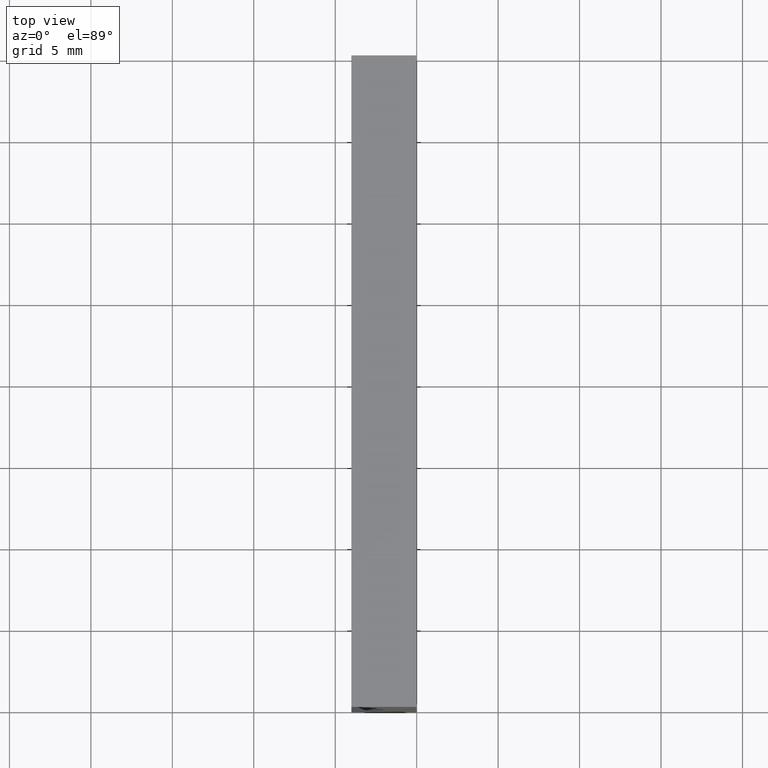
[diagram: clean part render]
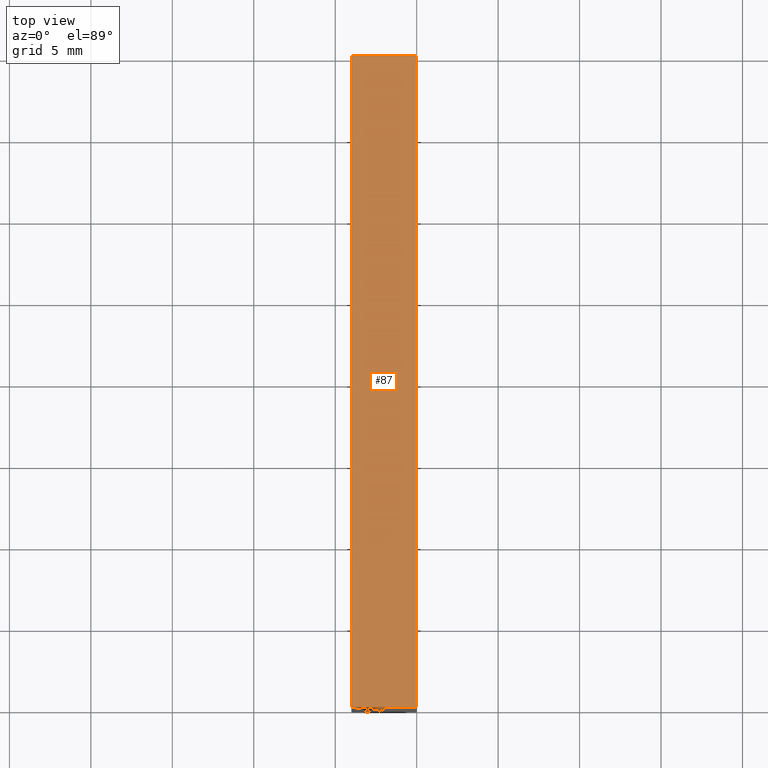
[diagram: same view with one face highlighted and labeled with its STEP entity id]
A machine part, top view. The second image highlights one B-rep face of the part: STEP entity #87.
In plain terms, the highlighted planar face has unit normal (0, 0, -1).
Its self-contained STEP definition (entity closure, byte-faithful):
#6 = LINE ( 'NONE', #25, #141 ) ;
#12 = EDGE_CURVE ( 'NONE', #93, #101, #32, .T. ) ;
#23 = DIRECTION ( 'NONE',  ( 8.646420205378973500E-016, 0.0000000000000000000, -1.000000000000000000 ) ) ;
#25 = CARTESIAN_POINT ( 'NONE',  ( -4.012581935117213000, 40.00000000000000000, 19.99999999999999600 ) ) ;
#32 = LINE ( 'NONE', #202, #139 ) ;
#42 = CARTESIAN_POINT ( 'NONE',  ( 1.224646799147353300E-015, 40.00000000000000000, 20.00000000000000000 ) ) ;
#45 = ORIENTED_EDGE ( 'NONE', *, *, #12, .F. ) ;
#63 = AXIS2_PLACEMENT_3D ( 'NONE', #143, #23, #98 ) ;
#66 = ORIENTED_EDGE ( 'NONE', *, *, #78, .T. ) ;
#72 = ORIENTED_EDGE ( 'NONE', *, *, #201, .T. ) ;
#75 = CARTESIAN_POINT ( 'NONE',  ( -4.012581935117213000, 0.0000000000000000000, 19.99999999999999600 ) ) ;
#78 = EDGE_CURVE ( 'NONE', #190, #200, #186, .T. ) ;
#87 = ADVANCED_FACE ( 'NONE', ( #102 ), #182, .F. ) ;
#91 = DIRECTION ( 'NONE',  ( 1.000000000000000000, -0.0000000000000000000, 8.646420205378973500E-016 ) ) ;
#93 = VERTEX_POINT ( 'NONE', #108 ) ;
#98 = DIRECTION ( 'NONE',  ( -1.000000000000000000, 0.0000000000000000000, -8.646420205378973500E-016 ) ) ;
#101 = VERTEX_POINT ( 'NONE', #42 ) ;
#102 = FACE_OUTER_BOUND ( 'NONE', #178, .T. ) ;
#107 = VECTOR ( 'NONE', #160, 1000.000000000000000 ) ;
#108 = CARTESIAN_POINT ( 'NONE',  ( -4.012581935117213000, 40.00000000000000000, 19.99999999999999600 ) ) ;
#112 = DIRECTION ( 'NONE',  ( -0.0000000000000000000, -1.000000000000000000, -0.0000000000000000000 ) ) ;
#121 = CARTESIAN_POINT ( 'NONE',  ( 1.224646799147353300E-015, 40.00000000000000000, 20.00000000000000000 ) ) ;
#122 = ORIENTED_EDGE ( 'NONE', *, *, #176, .F. ) ;
#123 = DIRECTION ( 'NONE',  ( 1.000000000000000000, -0.0000000000000000000, 8.646420205378973500E-016 ) ) ;
#133 = VECTOR ( 'NONE', #91, 1000.000000000000000 ) ;
#136 = CARTESIAN_POINT ( 'NONE',  ( 1.224646799147353300E-015, 0.0000000000000000000, 20.00000000000000000 ) ) ;
#139 = VECTOR ( 'NONE', #123, 1000.000000000000000 ) ;
#141 = VECTOR ( 'NONE', #112, 1000.000000000000000 ) ;
#143 = CARTESIAN_POINT ( 'NONE',  ( 1.224646799147353300E-015, 40.00000000000000000, 20.00000000000000000 ) ) ;
#160 = DIRECTION ( 'NONE',  ( -0.0000000000000000000, -1.000000000000000000, -0.0000000000000000000 ) ) ;
#176 = EDGE_CURVE ( 'NONE', #101, #200, #204, .T. ) ;
#178 = EDGE_LOOP ( 'NONE', ( #66, #122, #45, #72 ) ) ;
#181 = CARTESIAN_POINT ( 'NONE',  ( 1.224646799147353300E-015, 0.0000000000000000000, 20.00000000000000000 ) ) ;
#182 = PLANE ( 'NONE',  #63 ) ;
#186 = LINE ( 'NONE', #136, #133 ) ;
#190 = VERTEX_POINT ( 'NONE', #75 ) ;
#200 = VERTEX_POINT ( 'NONE', #181 ) ;
#201 = EDGE_CURVE ( 'NONE', #93, #190, #6, .T. ) ;
#202 = CARTESIAN_POINT ( 'NONE',  ( 1.224646799147353300E-015, 40.00000000000000000, 20.00000000000000000 ) ) ;
#204 = LINE ( 'NONE', #121, #107 ) ;